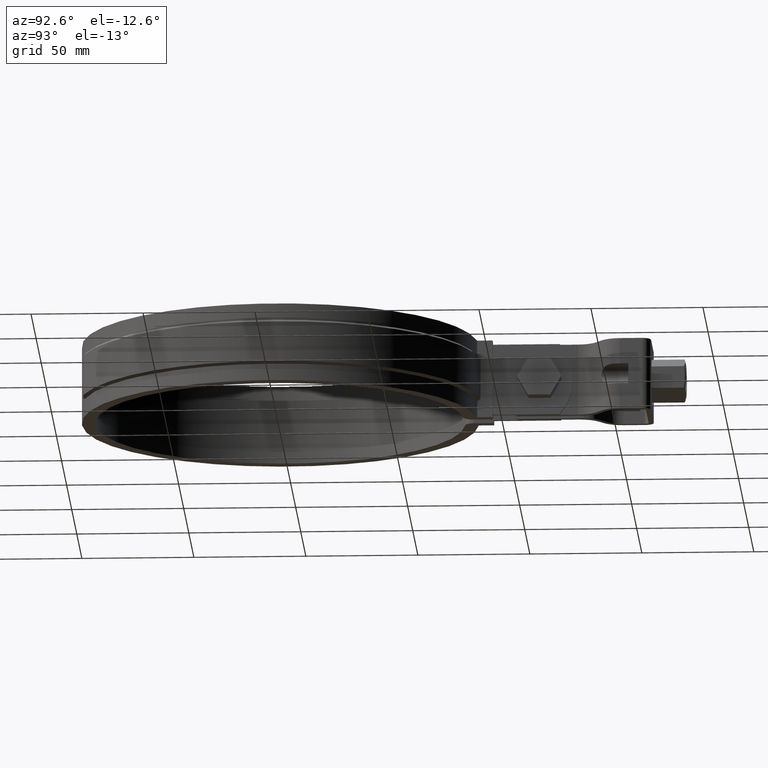
[diagram: clean part render]
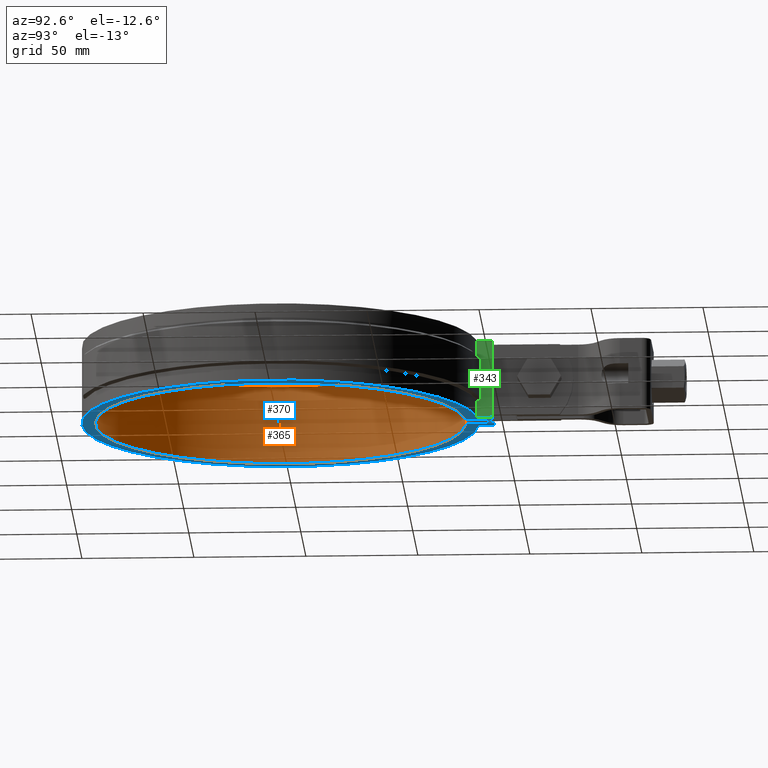
[diagram: same view with three faces highlighted in distinct colors, each labeled with its STEP entity id]
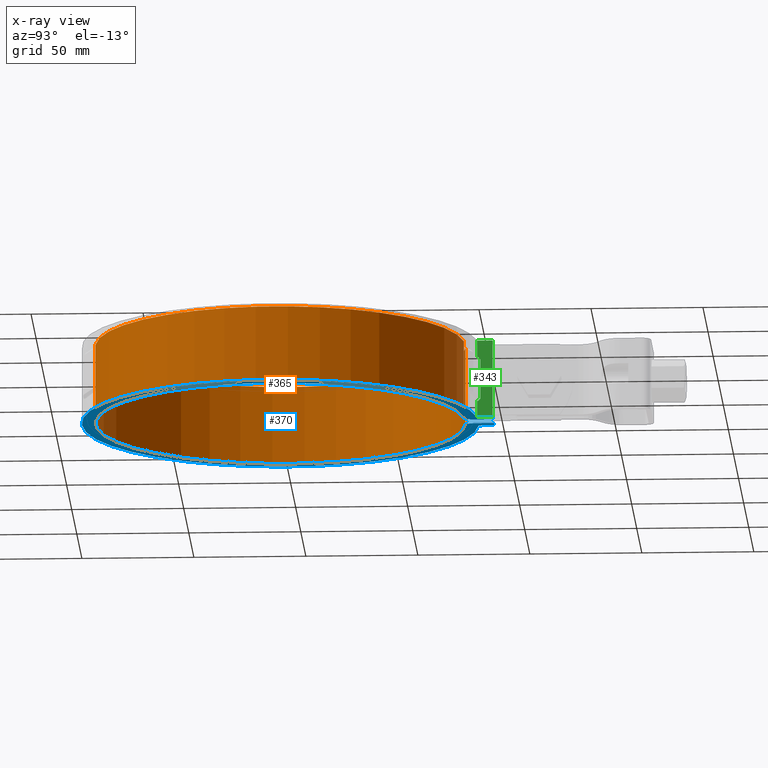
[diagram: x-ray of the same camera — body ghosted, the three highlighted faces saturated]
A machine part, auxiliary view with three faces highlighted in distinct colors.
The next image is the same camera in x-ray (body ghosted, the three faces saturated) — at least one of them is partly hidden behind the body in this view.
Their STEP definitions:

[orange] entity #365 — the highlighted cylindrical surface (partial cylindrical patch) has radius 82.6 mm, axis along (0, -0, -1).
#365 = ADVANCED_FACE( '', ( #603 ), #604, .F. );
#603 = FACE_OUTER_BOUND( '', #1738, .T. );
#604 = CYLINDRICAL_SURFACE( '', #1739, 82.5999999999999 );
#1738 = EDGE_LOOP( '', ( #3927, #3928, #3929, #3930 ) );
#1739 = AXIS2_PLACEMENT_3D( '', #3931, #3932, #3933 );
#3927 = ORIENTED_EDGE( '', *, *, #5126, .F. );
#3928 = ORIENTED_EDGE( '', *, *, #5125, .F. );
#3929 = ORIENTED_EDGE( '', *, *, #5127, .T. );
#3930 = ORIENTED_EDGE( '', *, *, #5128, .T. );
#3931 = CARTESIAN_POINT( '', ( 8.67361737988404E-015, 2.35922392732846E-013, -33.5000000000000 ) );
#3932 = DIRECTION( '', ( 1.16187428350752E-033, -2.54514470950044E-019, -1.00000000000000 ) );
#3933 = DIRECTION( '', ( 0.000000000000000, 1.00000000000000, -2.54514470950044E-019 ) );
#5125 = EDGE_CURVE( '', #5709, #5707, #5711, .T. );
#5126 = EDGE_CURVE( '', #5707, #5712, #5713, .T. );
#5127 = EDGE_CURVE( '', #5709, #5714, #5715, .T. );
#5128 = EDGE_CURVE( '', #5714, #5712, #5716, .T. );
#5707 = VERTEX_POINT( '', #8574 );
#5709 = VERTEX_POINT( '', #8576 );
#5711 = LINE( '', #8578, #8579 );
#5712 = VERTEX_POINT( '', #8580 );
#5713 = CIRCLE( '', #8581, 82.5999999999999 );
#5714 = VERTEX_POINT( '', #8582 );
#5715 = CIRCLE( '', #8583, 82.5999999999999 );
#5716 = LINE( '', #8584, #8585 );
#8574 = CARTESIAN_POINT( '', ( 7.43972286374133, 82.2642724620520, 1.50000000000000 ) );
#8576 = CARTESIAN_POINT( '', ( 7.43972286374133, 82.2642724620520, -33.5000000000000 ) );
#8578 = CARTESIAN_POINT( '', ( 7.43972286374133, 82.2642724620520, -33.5000000000000 ) );
#8579 = VECTOR( '', #9669, 1000.00000000000 );
#8580 = CARTESIAN_POINT( '', ( -7.43972286374150, 82.2642724620521, 1.50000000000000 ) );
#8581 = AXIS2_PLACEMENT_3D( '', #9670, #9671, #9672 );
#8582 = CARTESIAN_POINT( '', ( -7.43972286374150, 82.2642724620521, -33.5000000000000 ) );
#8583 = AXIS2_PLACEMENT_3D( '', #9673, #9674, #9675 );
#8584 = CARTESIAN_POINT( '', ( -7.43972286374150, 82.2642724620521, -33.5000000000000 ) );
#8585 = VECTOR( '', #9676, 1000.00000000000 );
#9669 = DIRECTION( '', ( -1.16187428350752E-033, 2.54514470950044E-019, 1.00000000000000 ) );
#9670 = CARTESIAN_POINT( '', ( 8.67361737988404E-015, 2.35922392732846E-013, 1.50000000000000 ) );
#9671 = DIRECTION( '', ( 1.16187428350752E-033, -2.54514470950044E-019, -1.00000000000000 ) );
#9672 = DIRECTION( '', ( 1.00000000000000, 2.95713818577378E-052, 1.16187428350752E-033 ) );
#9673 = CARTESIAN_POINT( '', ( 8.67361737988404E-015, 2.35922392732846E-013, -33.5000000000000 ) );
#9674 = DIRECTION( '', ( 1.16187428350752E-033, -2.54514470950044E-019, -1.00000000000000 ) );
#9675 = DIRECTION( '', ( 1.00000000000000, 2.95713818577378E-052, 1.16187428350752E-033 ) );
#9676 = DIRECTION( '', ( -1.16187428350752E-033, 2.54514470950044E-019, 1.00000000000000 ) );

[blue] entity #370 — the highlighted planar face has unit normal (-0, 0, 1).
#370 = ADVANCED_FACE( '', ( #613 ), #614, .F. );
#613 = FACE_OUTER_BOUND( '', #1748, .T. );
#614 = PLANE( '', #1749 );
#1748 = EDGE_LOOP( '', ( #3980, #3981, #3982, #3983, #3984, #3985, #3986, #3987, #3988, #3989 ) );
#1749 = AXIS2_PLACEMENT_3D( '', #3990, #3991, #3992 );
#3980 = ORIENTED_EDGE( '', *, *, #5052, .F. );
#3981 = ORIENTED_EDGE( '', *, *, #5150, .F. );
#3982 = ORIENTED_EDGE( '', *, *, #5141, .F. );
#3983 = ORIENTED_EDGE( '', *, *, #5115, .F. );
#3984 = ORIENTED_EDGE( '', *, *, #5133, .F. );
#3985 = ORIENTED_EDGE( '', *, *, #5130, .F. );
#3986 = ORIENTED_EDGE( '', *, *, #5127, .F. );
#3987 = ORIENTED_EDGE( '', *, *, #5124, .F. );
#3988 = ORIENTED_EDGE( '', *, *, #5121, .F. );
#3989 = ORIENTED_EDGE( '', *, *, #5040, .F. );
#3990 = CARTESIAN_POINT( '', ( 7.80000000000001, 86.2480144698996, -33.5000000000000 ) );
#3991 = DIRECTION( '', ( -1.16187428350752E-033, 2.54514470950044E-019, 1.00000000000000 ) );
#3992 = DIRECTION( '', ( 0.000000000000000, 1.00000000000000, -2.54514470950044E-019 ) );
#5040 = EDGE_CURVE( '', #5561, #5563, #5564, .T. );
#5052 = EDGE_CURVE( '', #5585, #5561, #5587, .T. );
#5115 = EDGE_CURVE( '', #5692, #5694, #5695, .T. );
#5121 = EDGE_CURVE( '', #5563, #5704, #5705, .T. );
#5124 = EDGE_CURVE( '', #5704, #5709, #5710, .T. );
#5127 = EDGE_CURVE( '', #5709, #5714, #5715, .T. );
#5130 = EDGE_CURVE( '', #5714, #5719, #5720, .T. );
#5133 = EDGE_CURVE( '', #5719, #5692, #5723, .T. );
#5141 = EDGE_CURVE( '', #5694, #5738, #5739, .T. );
#5150 = EDGE_CURVE( '', #5738, #5585, #5753, .T. );
#5561 = VERTEX_POINT( '', #7374 );
#5563 = VERTEX_POINT( '', #7377 );
#5564 = LINE( '', #7378, #7379 );
#5585 = VERTEX_POINT( '', #7414 );
#5587 = LINE( '', #7417, #7418 );
#5692 = VERTEX_POINT( '', #8550 );
#5694 = VERTEX_POINT( '', #8553 );
#5695 = LINE( '', #8554, #8555 );
#5704 = VERTEX_POINT( '', #8569 );
#5705 = LINE( '', #8570, #8571 );
#5709 = VERTEX_POINT( '', #8576 );
#5710 = CIRCLE( '', #8577, 3.99999999999999 );
#5714 = VERTEX_POINT( '', #8582 );
#5715 = CIRCLE( '', #8583, 82.5999999999999 );
#5719 = VERTEX_POINT( '', #8588 );
#5720 = CIRCLE( '', #8589, 4.00000000000000 );
#5723 = LINE( '', #8594, #8595 );
#5738 = VERTEX_POINT( '', #8621 );
#5739 = LINE( '', #8622, #8623 );
#5753 = CIRCLE( '', #8639, 88.6000000000001 );
#7374 = CARTESIAN_POINT( '', ( 8.39999999999999, 95.1000000000000, -33.5000000000000 ) );
#7377 = CARTESIAN_POINT( '', ( 3.80000000000002, 95.1000000000000, -33.5000000000000 ) );
#7378 = CARTESIAN_POINT( '', ( 8.39999999999999, 95.1000000000000, -33.5000000000000 ) );
#7379 = VECTOR( '', #9586, 1000.00000000000 );
#7414 = CARTESIAN_POINT( '', ( 8.39999999999998, 88.2009070248147, -33.5000000000000 ) );
#7417 = CARTESIAN_POINT( '', ( 8.40000000000000, 88.2009070248147, -33.5000000000000 ) );
#7418 = VECTOR( '', #9596, 1000.00000000000 );
#8550 = CARTESIAN_POINT( '', ( -3.80000000000000, 95.1000000000000, -33.5000000000000 ) );
#8553 = CARTESIAN_POINT( '', ( -8.40000000000000, 95.1000000000000, -33.5000000000000 ) );
#8554 = CARTESIAN_POINT( '', ( -3.80000000000000, 95.1000000000000, -33.5000000000000 ) );
#8555 = VECTOR( '', #9655, 1000.00000000000 );
#8569 = CARTESIAN_POINT( '', ( 3.80000000000002, 86.2480144698996, -33.5000000000000 ) );
#8570 = CARTESIAN_POINT( '', ( 3.80000000000002, 95.1000000000001, -33.5000000000000 ) );
#8571 = VECTOR( '', #9661, 1000.00000000000 );
#8576 = CARTESIAN_POINT( '', ( 7.43972286374133, 82.2642724620520, -33.5000000000000 ) );
#8577 = AXIS2_PLACEMENT_3D( '', #9666, #9667, #9668 );
#8582 = CARTESIAN_POINT( '', ( -7.43972286374150, 82.2642724620521, -33.5000000000000 ) );
#8583 = AXIS2_PLACEMENT_3D( '', #9673, #9674, #9675 );
#8588 = CARTESIAN_POINT( '', ( -3.80000000000000, 86.2480144698996, -33.5000000000000 ) );
#8589 = AXIS2_PLACEMENT_3D( '', #9680, #9681, #9682 );
#8594 = CARTESIAN_POINT( '', ( -3.80000000000000, 86.2480144698996, -33.5000000000000 ) );
#8595 = VECTOR( '', #9685, 1000.00000000000 );
#8621 = CARTESIAN_POINT( '', ( -8.40000000000000, 88.2009070248147, -33.5000000000000 ) );
#8622 = CARTESIAN_POINT( '', ( -8.40000000000000, 95.1000000000000, -33.5000000000000 ) );
#8623 = VECTOR( '', #9691, 1000.00000000000 );
#8639 = AXIS2_PLACEMENT_3D( '', #9712, #9713, #9714 );
#9586 = DIRECTION( '', ( -1.00000000000000, -2.22552369041245E-067, -8.55284707229502E-049 ) );
#9596 = DIRECTION( '', ( 6.93889390390723E-017, 1.00000000000000, 8.06212238293691E-050 ) );
#9655 = DIRECTION( '', ( -1.00000000000000, -2.22552369041245E-067, -8.55284707229502E-049 ) );
#9661 = DIRECTION( '', ( -6.10365667473322E-017, -1.00000000000000, -7.09168172573154E-050 ) );
#9666 = CARTESIAN_POINT( '', ( 7.80000000000001, 86.2480144698996, -33.5000000000000 ) );
#9667 = DIRECTION( '', ( -1.16187428350752E-033, 2.54514470950044E-019, 1.00000000000000 ) );
#9668 = DIRECTION( '', ( -1.00000000000000, -2.95713818577378E-052, -1.16187428350752E-033 ) );
#9673 = CARTESIAN_POINT( '', ( 8.67361737988404E-015, 2.35922392732846E-013, -33.5000000000000 ) );
#9674 = DIRECTION( '', ( 1.16187428350752E-033, -2.54514470950044E-019, -1.00000000000000 ) );
#9675 = DIRECTION( '', ( 1.00000000000000, 2.95713818577378E-052, 1.16187428350752E-033 ) );
#9680 = CARTESIAN_POINT( '', ( -7.80000000000000, 86.2480144698996, -33.5000000000000 ) );
#9681 = DIRECTION( '', ( -1.16187428350752E-033, 2.54514470950044E-019, 1.00000000000000 ) );
#9682 = DIRECTION( '', ( 1.00000000000000, 2.95713818577378E-052, 1.16187428350752E-033 ) );
#9685 = DIRECTION( '', ( 6.10365667473322E-017, 1.00000000000000, 7.09168172573155E-050 ) );
#9691 = DIRECTION( '', ( -6.93889390390723E-017, -1.00000000000000, -8.06212238293691E-050 ) );
#9712 = CARTESIAN_POINT( '', ( 6.93889390390723E-015, -2.77555756156289E-014, -33.5000000000000 ) );
#9713 = DIRECTION( '', ( -1.16187428350752E-033, 2.54514470950044E-019, 1.00000000000000 ) );
#9714 = DIRECTION( '', ( 1.00000000000000, 2.95713818577378E-052, 1.16187428350752E-033 ) );

[green] entity #343 — the highlighted planar face has unit normal (1, -0, 0).
#343 = ADVANCED_FACE( '', ( #557 ), #558, .T. );
#557 = FACE_OUTER_BOUND( '', #1319, .T. );
#558 = PLANE( '', #1320 );
#1319 = EDGE_LOOP( '', ( #3000, #3001, #3002, #3003, #3004, #3005, #3006, #3007, #3008, #3009 ) );
#1320 = AXIS2_PLACEMENT_3D( '', #3010, #3011, #3012 );
#3000 = ORIENTED_EDGE( '', *, *, #5046, .F. );
#3001 = ORIENTED_EDGE( '', *, *, #5047, .T. );
#3002 = ORIENTED_EDGE( '', *, *, #5048, .F. );
#3003 = ORIENTED_EDGE( '', *, *, #5049, .T. );
#3004 = ORIENTED_EDGE( '', *, *, #5050, .T. );
#3005 = ORIENTED_EDGE( '', *, *, #5051, .F. );
#3006 = ORIENTED_EDGE( '', *, *, #5052, .T. );
#3007 = ORIENTED_EDGE( '', *, *, #5039, .T. );
#3008 = ORIENTED_EDGE( '', *, *, #5053, .F. );
#3009 = ORIENTED_EDGE( '', *, *, #5054, .F. );
#3010 = CARTESIAN_POINT( '', ( 8.40000000000000, 88.2009070248147, -33.5000000000000 ) );
#3011 = DIRECTION( '', ( 1.00000000000000, -6.93889390390723E-017, 1.17953477261683E-033 ) );
#3012 = DIRECTION( '', ( -6.93889390390723E-017, -1.00000000000000, 2.54514470950044E-019 ) );
#5039 = EDGE_CURVE( '', #5561, #5558, #5562, .T. );
#5046 = EDGE_CURVE( '', #5574, #5575, #5576, .T. );
#5047 = EDGE_CURVE( '', #5574, #5577, #5578, .T. );
#5048 = EDGE_CURVE( '', #5579, #5577, #5580, .T. );
#5049 = EDGE_CURVE( '', #5579, #5581, #5582, .T. );
#5050 = EDGE_CURVE( '', #5581, #5583, #5584, .T. );
#5051 = EDGE_CURVE( '', #5585, #5583, #5586, .T. );
#5052 = EDGE_CURVE( '', #5585, #5561, #5587, .T. );
#5053 = EDGE_CURVE( '', #5588, #5558, #5589, .T. );
#5054 = EDGE_CURVE( '', #5575, #5588, #5590, .T. );
#5558 = VERTEX_POINT( '', #7370 );
#5561 = VERTEX_POINT( '', #7374 );
#5562 = LINE( '', #7375, #7376 );
#5574 = VERTEX_POINT( '', #7394 );
#5575 = VERTEX_POINT( '', #7395 );
#5576 = LINE( '', #7396, #7397 );
#5577 = VERTEX_POINT( '', #7398 );
#5578 = B_SPLINE_CURVE_WITH_KNOTS( '', 3, ( #7399, #7400, #7401, #7402 ), .UNSPECIFIED., .F., .F., ( 4, 4 ), ( 0.000000000000000, 0.00141734515066832 ), .UNSPECIFIED. );
#5579 = VERTEX_POINT( '', #7403 );
#5580 = LINE( '', #7404, #7405 );
#5581 = VERTEX_POINT( '', #7406 );
#5582 = B_SPLINE_CURVE_WITH_KNOTS( '', 3, ( #7407, #7408, #7409, #7410 ), .UNSPECIFIED., .F., .F., ( 4, 4 ), ( 5.41944938641421E-017, 0.00141734515066830 ), .UNSPECIFIED. );
#5583 = VERTEX_POINT( '', #7411 );
#5584 = LINE( '', #7412, #7413 );
#5585 = VERTEX_POINT( '', #7414 );
#5586 = LINE( '', #7415, #7416 );
#5587 = LINE( '', #7417, #7418 );
#5588 = VERTEX_POINT( '', #7419 );
#5589 = LINE( '', #7420, #7421 );
#5590 = LINE( '', #7422, #7423 );
#7370 = CARTESIAN_POINT( '', ( 8.39999999999999, 95.1000000000000, 1.50000000000000 ) );
#7374 = CARTESIAN_POINT( '', ( 8.39999999999999, 95.1000000000000, -33.5000000000000 ) );
#7375 = CARTESIAN_POINT( '', ( 8.39999999999999, 95.1000000000000, -33.5000000000000 ) );
#7376 = VECTOR( '', #9585, 1000.00000000000 );
#7394 = CARTESIAN_POINT( '', ( 8.39999999999999, 88.7031566518351, -6.00000000000000 ) );
#7395 = CARTESIAN_POINT( '', ( 8.39999999999998, 88.2009070248147, -6.00000000000001 ) );
#7396 = CARTESIAN_POINT( '', ( 8.39999999999999, 89.7075805046597, -6.00000000000000 ) );
#7397 = VECTOR( '', #9592, 1000.00000000000 );
#7398 = CARTESIAN_POINT( '', ( 8.40000000000000, 89.7075805046597, -6.99999999999999 ) );
#7399 = CARTESIAN_POINT( '', ( 8.39999999999999, 88.7031566518351, -6.00000000000000 ) );
#7400 = CARTESIAN_POINT( '', ( 8.39999999999999, 89.0379728961723, -6.33332500304170 ) );
#7401 = CARTESIAN_POINT( '', ( 8.39999999999999, 89.3727807548670, -6.66665842943985 ) );
#7402 = CARTESIAN_POINT( '', ( 8.39999999999999, 89.7075805046597, -7.00000000000000 ) );
#7403 = CARTESIAN_POINT( '', ( 8.40000000000000, 89.7075805046597, -25.0000000000000 ) );
#7404 = CARTESIAN_POINT( '', ( 8.39999999999996, 89.7075805046598, -26.0000000000000 ) );
#7405 = VECTOR( '', #9593, 1000.00000000000 );
#7406 = CARTESIAN_POINT( '', ( 8.40000000000000, 88.7031566518351, -26.0000000000000 ) );
#7407 = CARTESIAN_POINT( '', ( 8.39999999999996, 89.7075805046597, -25.0000000000000 ) );
#7408 = CARTESIAN_POINT( '', ( 8.39999999999996, 89.3727807548670, -25.3333415705602 ) );
#7409 = CARTESIAN_POINT( '', ( 8.39999999999999, 89.0379728961723, -25.6666749969583 ) );
#7410 = CARTESIAN_POINT( '', ( 8.39999999999999, 88.7031566518351, -26.0000000000000 ) );
#7411 = CARTESIAN_POINT( '', ( 8.39999999999998, 88.2009070248147, -26.0000000000000 ) );
#7412 = CARTESIAN_POINT( '', ( 8.39999999999999, 89.7075805046597, -26.0000000000000 ) );
#7413 = VECTOR( '', #9594, 1000.00000000000 );
#7414 = CARTESIAN_POINT( '', ( 8.39999999999998, 88.2009070248147, -33.5000000000000 ) );
#7415 = CARTESIAN_POINT( '', ( 8.39999999999998, 88.2009070248147, -33.5000000000000 ) );
#7416 = VECTOR( '', #9595, 1000.00000000000 );
#7417 = CARTESIAN_POINT( '', ( 8.40000000000000, 88.2009070248147, -33.5000000000000 ) );
#7418 = VECTOR( '', #9596, 1000.00000000000 );
#7419 = CARTESIAN_POINT( '', ( 8.39999999999998, 88.2009070248147, 1.50000000000000 ) );
#7420 = CARTESIAN_POINT( '', ( 8.40000000000000, 88.2009070248147, 1.50000000000000 ) );
#7421 = VECTOR( '', #9597, 1000.00000000000 );
#7422 = CARTESIAN_POINT( '', ( 8.39999999999998, 88.2009070248147, -33.5000000000000 ) );
#7423 = VECTOR( '', #9598, 1000.00000000000 );
#9585 = DIRECTION( '', ( -1.16187428350752E-033, 2.54514470950044E-019, 1.00000000000000 ) );
#9592 = DIRECTION( '', ( 0.000000000000000, -1.00000000000000, 0.000000000000000 ) );
#9593 = DIRECTION( '', ( 0.000000000000000, 0.000000000000000, 1.00000000000000 ) );
#9594 = DIRECTION( '', ( 0.000000000000000, -1.00000000000000, 0.000000000000000 ) );
#9595 = DIRECTION( '', ( -1.16187428350752E-033, 2.54514470950044E-019, 1.00000000000000 ) );
#9596 = DIRECTION( '', ( 6.93889390390723E-017, 1.00000000000000, 8.06212238293691E-050 ) );
#9597 = DIRECTION( '', ( 6.93889390390723E-017, 1.00000000000000, 8.06212238293691E-050 ) );
#9598 = DIRECTION( '', ( -1.16187428350752E-033, 2.54514470950044E-019, 1.00000000000000 ) );